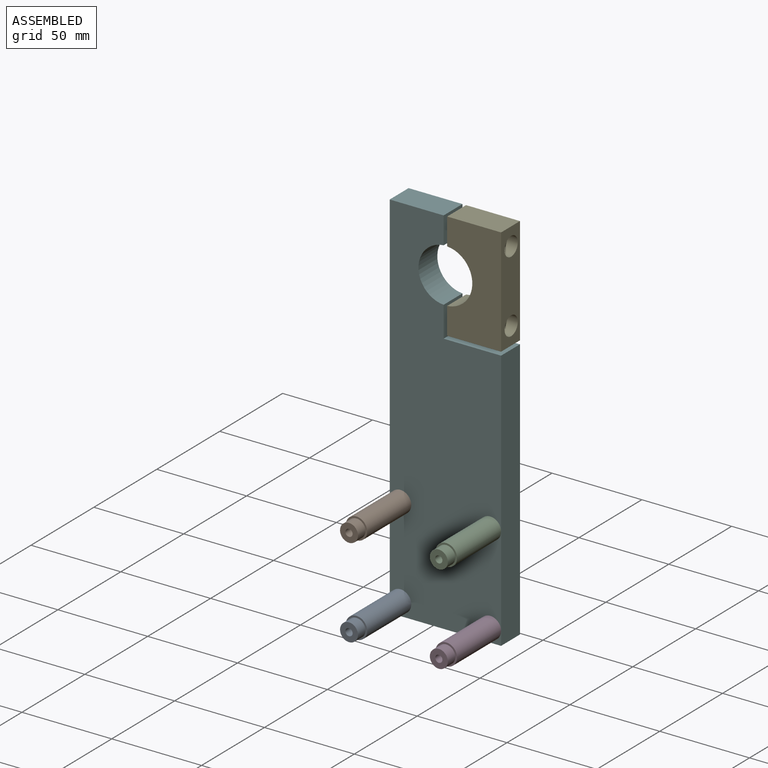
[diagram: assembled view]
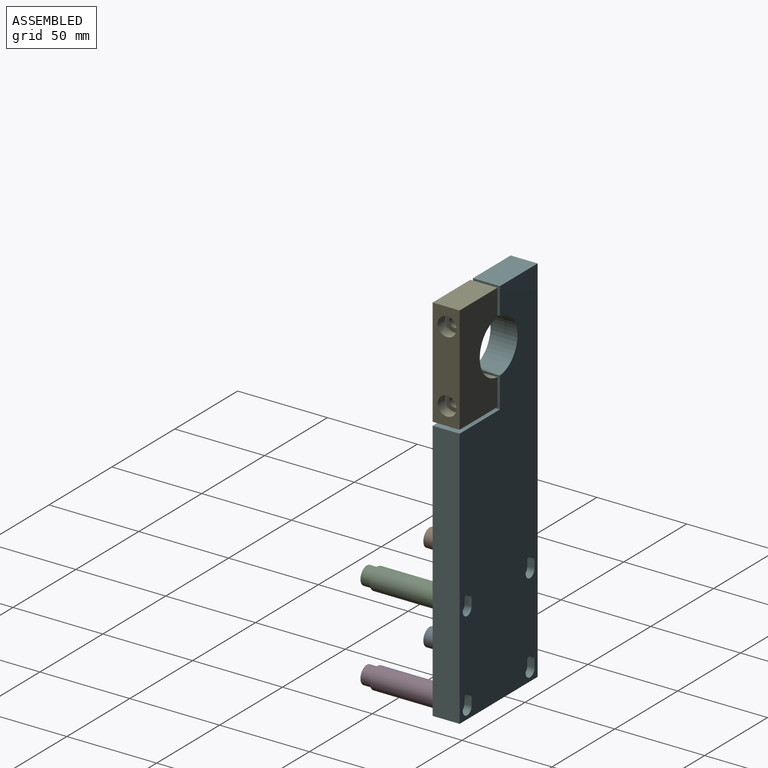
[diagram: assembled view, second angle]
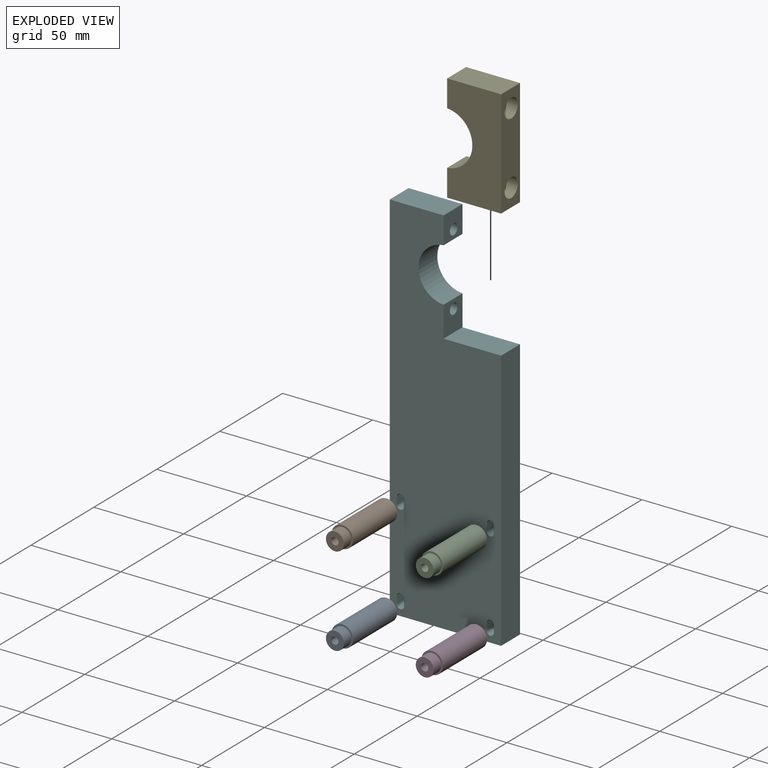
[diagram: exploded view]
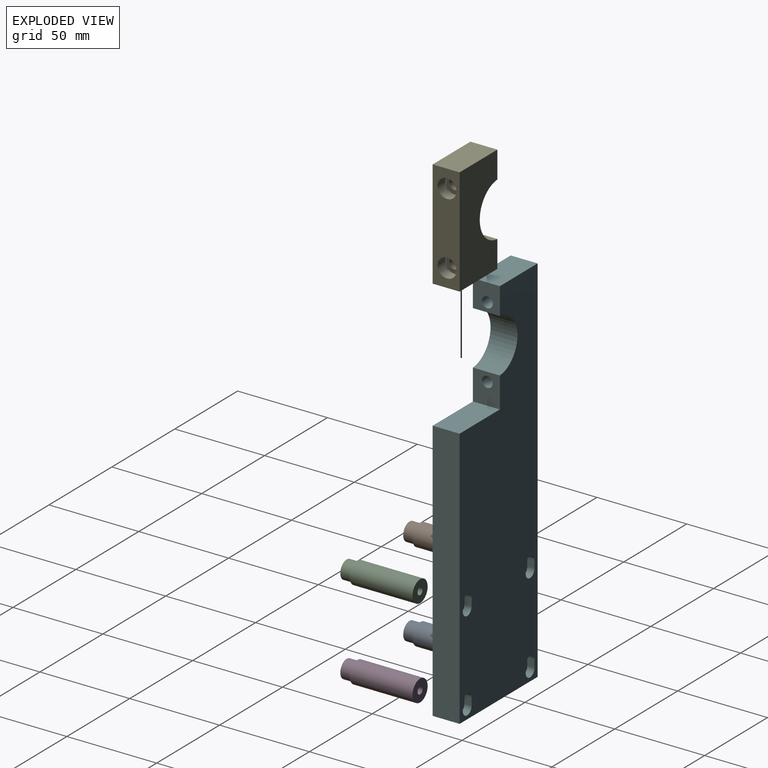
[diagram: exploded view, second angle]
ASSEMBLY  parts=6 mates=5
PART A: 9 faces, bbox 12x40.9x12 mm
  f0: cylinder r=6mm len=35mm, axis (0,1,0), area 659.7mm2, adj f1,f2,f3
  f1: cylinder r=6mm len=35mm, axis (0,1,0), area 659.7mm2, adj f0,f2,f3
  f2: plane 12.03x12mm, normal (0,-1,0), area 34.6mm2, adj f0,f1,f4,f5
  f3: plane 12.03x12mm, normal (0,1,0), area 100.5mm2, adj f0,f1,f6,f7
  f4: cylinder r=5mm len=10mm, axis (0,1,0), area 92.8mm2, adj f2,f5,f8
  f5: cylinder r=5mm len=10mm, axis (0,1,0), area 92.8mm2, adj f2,f4,f8
  f6: cylinder r=2mm len=40.91mm, axis (0,-1,0), area 257mm2, adj f3,f7,f8
  f7: cylinder r=2mm len=40.91mm, axis (0,-1,0), area 257mm2, adj f3,f6,f8
  f8: plane 10.01x10mm, normal (0,-1,0), area 66mm2, adj f4,f5,f6,f7
PART B: same geometry as A
PART C: same geometry as A
PART D: same geometry as A
PART E: 18 faces, bbox 30x15x60 mm
  f0: plane 10.54x10.51mm, normal (1,0,0), area 58.3mm2, adj f1,f2,f3,f4
  f1: cylinder r=5.25mm len=10.5mm, axis (-1,0,0), area 99mm2, adj f0,f2,f7
  f2: cylinder r=5.25mm len=10.5mm, axis (-1,0,0), area 99mm2, adj f0,f1,f7
  f3: cylinder r=3mm len=24mm, axis (-1,0,0), area 226.2mm2, adj f0,f4,f9
  f4: cylinder r=3mm len=24mm, axis (-1,0,0), area 226.2mm2, adj f0,f3,f9
  f5: cylinder r=5.25mm len=10.5mm, axis (-1,0,0), area 99mm2, adj f6,f7,f10
  f6: cylinder r=5.25mm len=10.5mm, axis (-1,0,0), area 99mm2, adj f5,f7,f10
  f7: plane 60x15mm, normal (1,0,0), area 726.8mm2, adj f1,f2,f5,f6,f8,f12,f13,f14
  f8: plane 30x15mm, normal (0,0,1), area 450mm2, adj f7,f9,f12,f14
  f9: plane 15.03x15mm, normal (-1,0,0), area 197.2mm2, adj f3,f4,f8,f11,f12,f14
  f10: plane 10.54x10.51mm, normal (1,0,0), area 58.3mm2, adj f5,f6,f15,f16
  f11: cylinder r=15mm len=29.93mm, axis (0,-1,0), area 676.8mm2, adj f9,f12,f14,f17
  f12: plane 60x30mm, normal (0,1,0), area 1476.5mm2, adj f7,f8,f9,f11,f13,f17
  f13: plane 30x15mm, normal (0,0,-1), area 450mm2, adj f7,f12,f14,f17
  f14: plane 60x30mm, normal (0,-1,0), area 1476.5mm2, adj f7,f8,f9,f11,f13,f17
  f15: cylinder r=3mm len=24mm, axis (-1,0,0), area 226.2mm2, adj f10,f16,f17
  f16: cylinder r=3mm len=24mm, axis (-1,0,0), area 226.2mm2, adj f10,f15,f17
  f17: plane 15.03x15mm, normal (-1,0,0), area 197.2mm2, adj f11,f12,f13,f14,f15,f16
PART F: 51 faces, bbox 62x15x208 mm
  f0: plane 11.06x7.01mm, normal (0,1,0), area 37.9mm2, adj f12,f13,f14,f15,f24,f25,f26,f27
  f1: plane 11.06x7.01mm, normal (0,1,0), area 37.9mm2, adj f4,f5,f6,f7,f28,f29,f30,f31
  f2: plane 11.06x7.01mm, normal (0,1,0), area 37.9mm2, adj f16,f17,f18,f19,f32,f33,f34,f35
  f3: plane 11.06x7.01mm, normal (0,1,0), area 37.9mm2, adj f8,f9,f10,f11,f36,f37,f38,f39
  f4: cylinder r=3.5mm len=7mm, axis (0,1,0), area 44mm2, adj f1,f5,f7,f43
  f5: plane 4x4mm, normal (1,0,0), area 16mm2, adj f1,f4,f6,f43
  f6: cylinder r=3.5mm len=7mm, axis (0,1,0), area 44mm2, adj f1,f5,f7,f43
  f7: plane 4x4mm, normal (-1,0,0), area 16mm2, adj f1,f4,f6,f43
  f8: plane 4x4mm, normal (-1,0,0), area 16mm2, adj f3,f9,f11,f43
  f9: cylinder r=3.5mm len=7mm, axis (0,1,0), area 44mm2, adj f3,f8,f10,f43
  f10: plane 4x4mm, normal (1,0,0), area 16mm2, adj f3,f9,f11,f43
  f11: cylinder r=3.5mm len=7mm, axis (0,1,0), area 44mm2, adj f3,f8,f10,f43
  f12: plane 4x4mm, normal (1,0,0), area 16mm2, adj f0,f13,f15,f43
  f13: cylinder r=3.5mm len=7mm, axis (0,1,0), area 44mm2, adj f0,f12,f14,f43
  f14: plane 4x4mm, normal (-1,0,0), area 16mm2, adj f0,f13,f15,f43
  f15: cylinder r=3.5mm len=7mm, axis (0,1,0), area 44mm2, adj f0,f12,f14,f43
  f16: cylinder r=3.5mm len=7mm, axis (0,1,0), area 44mm2, adj f2,f17,f19,f43
  f17: plane 4x4mm, normal (-1,0,0), area 16mm2, adj f2,f16,f18,f43
  f18: cylinder r=3.5mm len=7mm, axis (0,1,0), area 44mm2, adj f2,f17,f19,f43
  f19: plane 4x4mm, normal (1,0,0), area 16mm2, adj f2,f16,f18,f43
  f20: plane 116.07x15mm, normal (1,0,0), area 1741mm2, adj f21,f43,f44,f45
  f21: plane 29.93x15mm, normal (1,0,0), area 449mm2, adj f20,f22,f43,f45
  f22: plane 32x15mm, normal (0,0,1), area 480mm2, adj f21,f41,f43,f45
  f23: cylinder r=15mm len=29.93mm, axis (0,-1,0), area 676.8mm2, adj f40,f41,f43,f45
  f24: plane 11x4mm, normal (-1,0,0), area 44mm2, adj f0,f25,f27,f45
  f25: cylinder r=2mm len=11mm, axis (0,-1,0), area 69.1mm2, adj f0,f24,f26,f45
  f26: plane 11x4mm, normal (1,0,0), area 44mm2, adj f0,f25,f27,f45
  f27: cylinder r=2mm len=11mm, axis (0,-1,0), area 69.1mm2, adj f0,f24,f26,f45
  f28: cylinder r=2mm len=11mm, axis (0,-1,0), area 69.1mm2, adj f1,f29,f31,f45
  f29: plane 11x4mm, normal (1,0,0), area 44mm2, adj f1,f28,f30,f45
  f30: cylinder r=2mm len=11mm, axis (0,-1,0), area 69.1mm2, adj f1,f29,f31,f45
  f31: plane 11x4mm, normal (-1,0,0), area 44mm2, adj f1,f28,f30,f45
  f32: cylinder r=2mm len=11mm, axis (0,-1,0), area 69.1mm2, adj f2,f33,f35,f45
  f33: plane 11x4mm, normal (-1,0,0), area 44mm2, adj f2,f32,f34,f45
  f34: cylinder r=2mm len=11mm, axis (0,-1,0), area 69.1mm2, adj f2,f33,f35,f45
  f35: plane 11x4mm, normal (1,0,0), area 44mm2, adj f2,f32,f34,f45
  f36: plane 11x4mm, normal (1,0,0), area 44mm2, adj f3,f37,f39,f45
  f37: cylinder r=2mm len=11mm, axis (0,-1,0), area 69.1mm2, adj f3,f36,f38,f45
  f38: plane 11x4mm, normal (-1,0,0), area 44mm2, adj f3,f37,f39,f45
  f39: cylinder r=2mm len=11mm, axis (0,-1,0), area 69.1mm2, adj f3,f36,f38,f45
  f40: plane 15.03x15mm, normal (1,0,0), area 197.2mm2, adj f23,f42,f43,f45,f46,f47
  f41: plane 17.03x15mm, normal (1,0,0), area 227.2mm2, adj f22,f23,f43,f45,f48,f49
  f42: plane 30x15mm, normal (0,0,1), area 450mm2, adj f40,f43,f45,f50
  f43: plane 208x62mm, normal (0,1,0), area 10322.6mm2, adj f4,f5,f6,f7,f8,f9,f10,f11
  f44: plane 62x15mm, normal (0,0,-1), area 930mm2, adj f20,f43,f45,f50
  f45: plane 208x62mm, normal (0,-1,0), area 10474.3mm2, adj f20,f21,f22,f23,f24,f25,f26,f27
  f46: cylinder r=3mm len=30mm, axis (-1,0,0), area 282.7mm2, adj f40,f47,f50
  f47: cylinder r=3mm len=30mm, axis (-1,0,0), area 282.7mm2, adj f40,f46,f50
  f48: cylinder r=3mm len=30mm, axis (-1,0,0), area 282.7mm2, adj f41,f49,f50
  f49: cylinder r=3mm len=30mm, axis (-1,0,0), area 282.7mm2, adj f41,f48,f50
  f50: plane 208x15mm, normal (-1,0,0), area 3063.5mm2, adj f42,f43,f44,f45,f46,f47,f48,f49
PLACE A t=(-88.96,-21.92,-211.59)mm
PLACE B t=(-88.96,-21.92,-161.59)mm
PLACE C t=(-38.96,-21.92,-161.59)mm
PLACE D t=(-38.96,-21.92,-211.59)mm
PLACE E t=(-88.96,-21.92,129.41)mm
PLACE F t=(-88.96,-21.92,129.41)mm
MATE fastened C.f0 <-> F.f45  axis (0,1,0) through (-63.96,-21.92,8.91)mm
MATE fastened F.f42 <-> E.f8  axis (0,0,1) through (-89.96,-21.92,159.41)mm
MATE fastened D.f0 <-> F.f45  axis (0,1,0) through (-63.96,-21.92,-41.09)mm
MATE fastened A.f0 <-> F.f45  axis (0,1,0) through (-113.96,-21.92,-41.09)mm
MATE fastened B.f0 <-> F.f45  axis (0,1,0) through (-113.96,-21.92,8.91)mm
